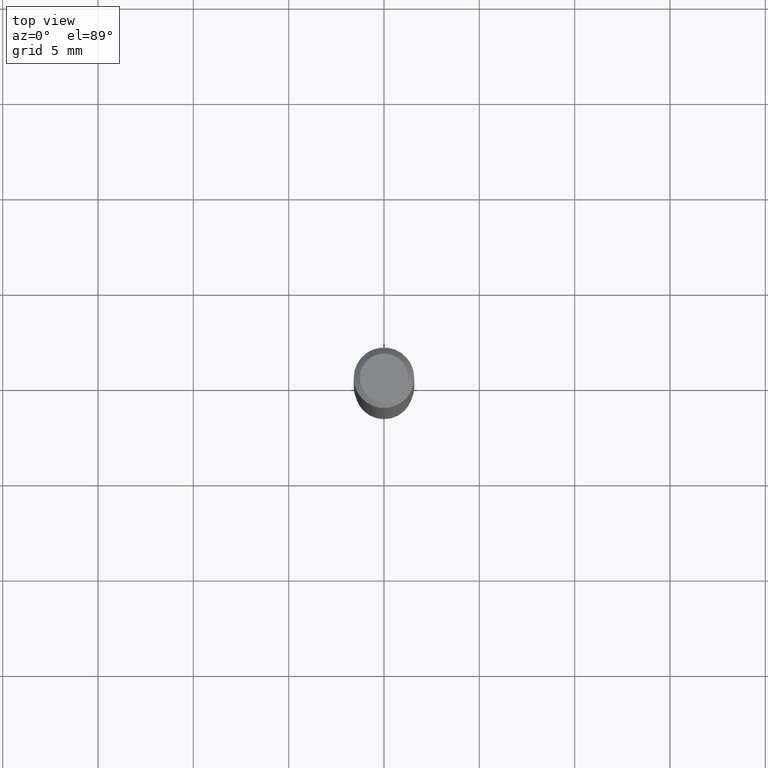
[diagram: clean part render]
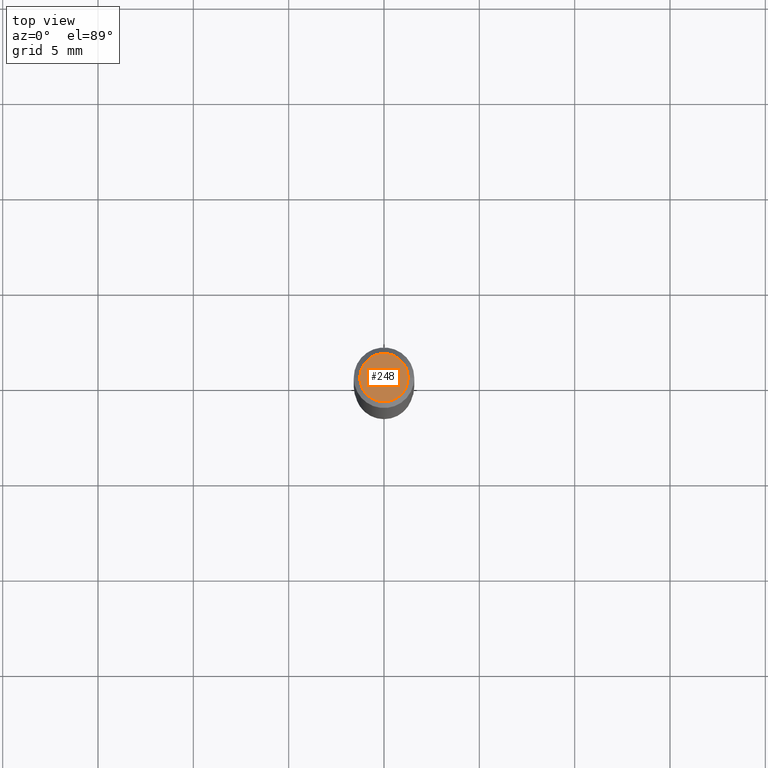
[diagram: same view with one face highlighted and labeled with its STEP entity id]
A machine part, top view. The second image highlights one B-rep face of the part: STEP entity #248.
In plain terms, the highlighted planar face has unit normal (0, -0, -1).
Its self-contained STEP definition (entity closure, byte-faithful):
#6 = CIRCLE ( 'NONE', #152, 0.04999999999999999584 ) ;
#51 = EDGE_LOOP ( 'NONE', ( #198, #196 ) ) ;
#59 = AXIS2_PLACEMENT_3D ( 'NONE', #262, #346, #150 ) ;
#61 = DIRECTION ( 'NONE',  ( -2.445468806185136597E-29, 3.491481338843145583E-15, 1.000000000000000000 ) ) ;
#100 = CIRCLE ( 'NONE', #463, 0.04999999999999999584 ) ;
#127 = CARTESIAN_POINT ( 'NONE',  ( 0.04999999999999999584, -4.077247707424184212E-16, -1.592040838888913461E-18 ) ) ;
#138 = DIRECTION ( 'NONE',  ( -2.445468806185136597E-29, 3.491481338843145583E-15, 1.000000000000000000 ) ) ;
#150 = DIRECTION ( 'NONE',  ( -1.000000000000000000, 6.982962677686265922E-15, -4.876176775795935793E-29 ) ) ;
#152 = AXIS2_PLACEMENT_3D ( 'NONE', #329, #61, #187 ) ;
#187 = DIRECTION ( 'NONE',  ( 1.000000000000000000, -6.982962677686265922E-15, 4.875957971899673662E-29 ) ) ;
#196 = ORIENTED_EDGE ( 'NONE', *, *, #431, .T. ) ;
#198 = ORIENTED_EDGE ( 'NONE', *, *, #293, .T. ) ;
#210 = CARTESIAN_POINT ( 'NONE',  ( -0.04999999999999999584, 3.709698922520826725E-16, -1.592040838894077649E-18 ) ) ;
#248 = ADVANCED_FACE ( 'NONE', ( #379 ), #348, .F. ) ;
#262 = CARTESIAN_POINT ( 'NONE',  ( 1.946643104841063088E-47, -2.779290439833033990E-33, -7.960204194457798443E-19 ) ) ;
#288 = DIRECTION ( 'NONE',  ( 1.000000000000000000, -6.982962677686265922E-15, 4.875957971899673662E-29 ) ) ;
#293 = EDGE_CURVE ( 'NONE', #392, #467, #6, .T. ) ;
#329 = CARTESIAN_POINT ( 'NONE',  ( 3.893286209682126177E-47, -5.558580879666067980E-33, -1.592040838891559689E-18 ) ) ;
#346 = DIRECTION ( 'NONE',  ( 2.438088387897960049E-29, -3.491481338843145188E-15, -1.000000000000000000 ) ) ;
#348 = PLANE ( 'NONE',  #59 ) ;
#379 = FACE_OUTER_BOUND ( 'NONE', #51, .T. ) ;
#392 = VERTEX_POINT ( 'NONE', #210 ) ;
#411 = CARTESIAN_POINT ( 'NONE',  ( 3.893286209682126177E-47, -5.558580879666067980E-33, -1.592040838891559689E-18 ) ) ;
#431 = EDGE_CURVE ( 'NONE', #467, #392, #100, .T. ) ;
#463 = AXIS2_PLACEMENT_3D ( 'NONE', #411, #138, #288 ) ;
#467 = VERTEX_POINT ( 'NONE', #127 ) ;